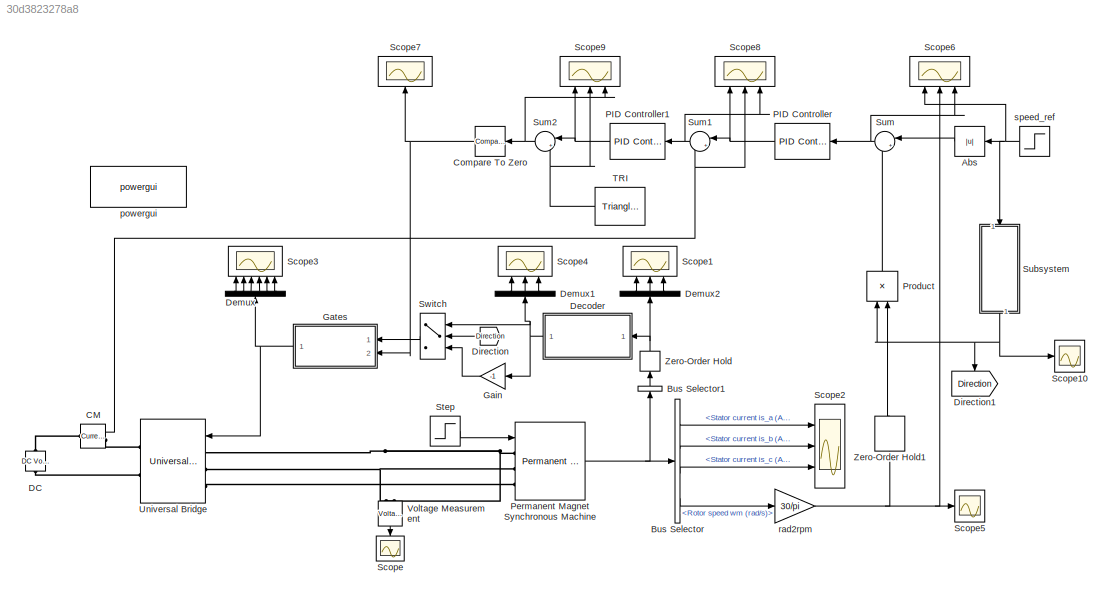
MODEL slx_30d3823278a8
KIND model
BLOCK [Abs] Abs
  SaturateOnIntegerOverflow = off
BLOCK [BusSelector] Bus Selector
  OutputSignals = Stator current is_a (A),Stator current is_b (A),Stator current is_c (A),Rotor speed wm (rad/s)
  Ports = [1, 4]
BLOCK [BusSelector] Bus Selector1
  OutputAsBus = on
  OutputSignals = Hall effect signal h_a,Hall effect signal h_b,Hall effect signal h_c
  Ports = [1, 1]
BLOCK [Reference] CM  REF=powerlib/Measurements/Current Measurement
  OutputType = Complex
  PSBequivalent = 0
  PhasorSimulation = off
  Ports = [0, 1, 0, 0, 0, 1, 1]
  SourceBlock = powerlib/Measurements/Current Measurement
  SourceType = Current Measurement
BLOCK [Reference] Compare To Zero  REF=simulink/Logic and Bit
Operations/Compare
To Zero
  OutDataTypeStr = boolean
  Ports = [1, 1]
  SourceBlock = simulink/Logic and Bit\nOperations/Compare\nTo Zero
  SourceType = Compare To Zero
  ZeroCross = on
  relop = >=
BLOCK [Reference] DC  REF=powerlib/Electrical
Sources/DC Voltage Source
  Amplitude = 48
  Measurements = None
  Ports = [0, 0, 0, 0, 0, 1, 1]
  SourceBlock = powerlib/Electrical\nSources/DC Voltage Source
  SourceType = DC Voltage Source
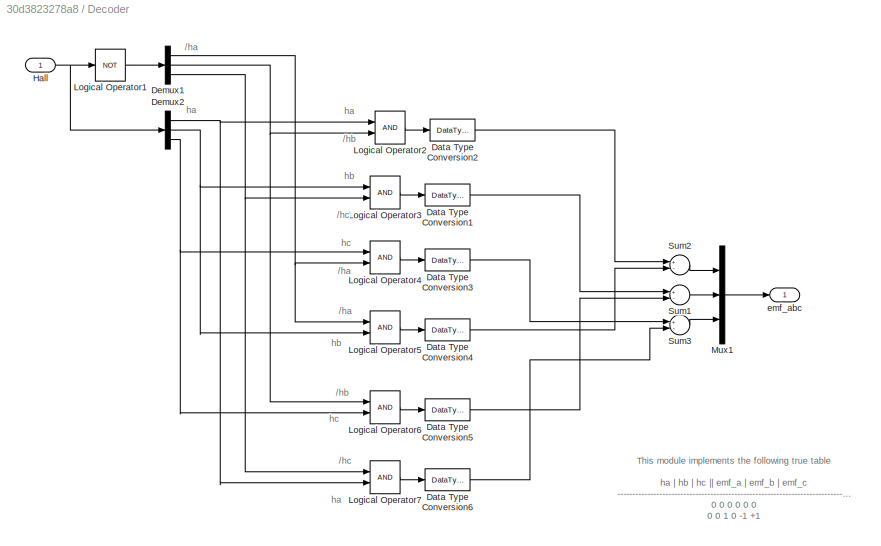
BLOCK [SubSystem] Decoder
  FunctionWithSeparateData = off
  MaskHideContents = off
  MinAlgLoopOccurrences = off
  Opaque = off
  Ports = [1, 1]
  PropExecContextOutsideSubsystem = off
  RTWSystemCode = Auto
  RequestExecContextInheritance = off
BLOCK [DataTypeConversion] Decoder/Data Type Conversion1
  RndMeth = Floor
  SaturateOnIntegerOverflow = off
BLOCK [DataTypeConversion] Decoder/Data Type Conversion2
  RndMeth = Floor
  SaturateOnIntegerOverflow = off
BLOCK [DataTypeConversion] Decoder/Data Type Conversion3
  RndMeth = Floor
  SaturateOnIntegerOverflow = off
BLOCK [DataTypeConversion] Decoder/Data Type Conversion4
  RndMeth = Floor
  SaturateOnIntegerOverflow = off
BLOCK [DataTypeConversion] Decoder/Data Type Conversion5
  RndMeth = Floor
  SaturateOnIntegerOverflow = off
BLOCK [DataTypeConversion] Decoder/Data Type Conversion6
  RndMeth = Floor
  SaturateOnIntegerOverflow = off
BLOCK [Demux] Decoder/Demux1
  DisplayOption = bar
  Outputs = 3
  Ports = [1, 3]
BLOCK [Demux] Decoder/Demux2
  DisplayOption = bar
  Outputs = 3
  Ports = [1, 3]
BLOCK [Inport] Decoder/Hall 
  IconDisplay = Port number
BLOCK [Logic] Decoder/Logical Operator1
  AllPortsSameDT = off
  Operator = NOT
  OutDataTypeStr = boolean
  Ports = [1, 1]
BLOCK [Logic] Decoder/Logical Operator2
  AllPortsSameDT = off
  OutDataTypeStr = boolean
  Ports = [2, 1]
BLOCK [Logic] Decoder/Logical Operator3
  AllPortsSameDT = off
  OutDataTypeStr = boolean
  Ports = [2, 1]
BLOCK [Logic] Decoder/Logical Operator4
  AllPortsSameDT = off
  OutDataTypeStr = boolean
  Ports = [2, 1]
BLOCK [Logic] Decoder/Logical Operator5
  AllPortsSameDT = off
  OutDataTypeStr = boolean
  Ports = [2, 1]
BLOCK [Logic] Decoder/Logical Operator6
  AllPortsSameDT = off
  OutDataTypeStr = boolean
  Ports = [2, 1]
BLOCK [Logic] Decoder/Logical Operator7
  AllPortsSameDT = off
  OutDataTypeStr = boolean
  Ports = [2, 1]
BLOCK [Mux] Decoder/Mux1
  DisplayOption = bar
  Inputs = 3
  Ports = [3, 1]
BLOCK [Sum] Decoder/Sum1
  InputSameDT = off
  Inputs = +-
  OutDataTypeStr = double
  Ports = [2, 1]
  SaturateOnIntegerOverflow = off
BLOCK [Sum] Decoder/Sum2
  InputSameDT = off
  Inputs = +-
  OutDataTypeStr = double
  Ports = [2, 1]
  SaturateOnIntegerOverflow = off
BLOCK [Sum] Decoder/Sum3
  InputSameDT = off
  Inputs = +-
  OutDataTypeStr = double
  Ports = [2, 1]
  SaturateOnIntegerOverflow = off
BLOCK [Outport] Decoder/emf_abc
  IconDisplay = Port number
BLOCK [Demux] Demux
  DisplayOption = bar
  Outputs = 6
  Ports = [1, 6]
BLOCK [Demux] Demux1
  DisplayOption = bar
  Outputs = 3
  Ports = [1, 3]
BLOCK [Demux] Demux2
  DisplayOption = bar
  Outputs = 3
  Ports = [1, 3]
BLOCK [From] Direction
  GotoTag = Direction
  TagVisibility = global
BLOCK [Goto] Direction1
  GotoTag = Direction
  TagVisibility = global
BLOCK [Gain] Gain
  Gain = -1
  OutDataTypeStr = Inherit: Inherit via internal rule
  ParamDataTypeStr = Inherit: Inherit via internal rule
  SaturateOnIntegerOverflow = off
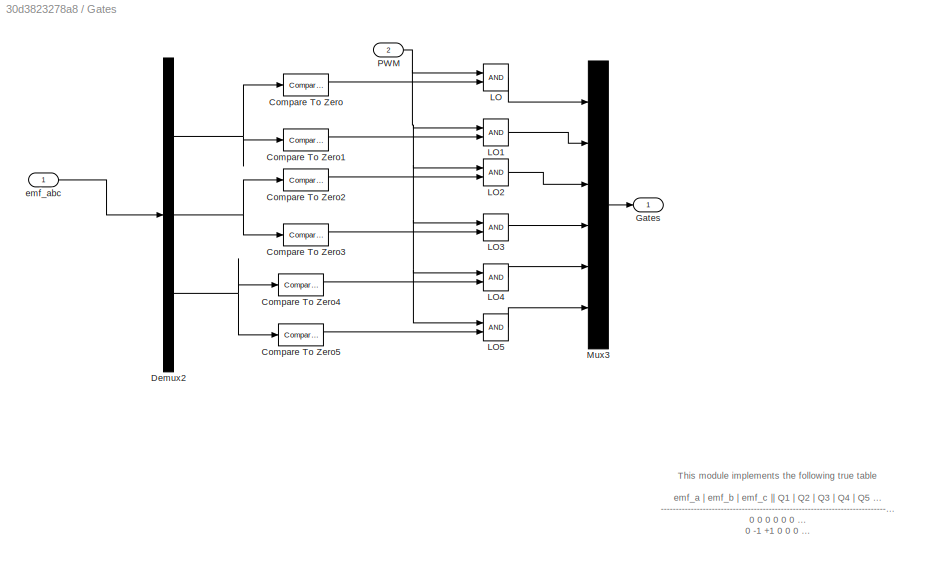
BLOCK [SubSystem] Gates
  FunctionWithSeparateData = off
  MaskHideContents = off
  MinAlgLoopOccurrences = off
  Opaque = off
  Ports = [2, 1]
  PropExecContextOutsideSubsystem = off
  RTWSystemCode = Auto
  RequestExecContextInheritance = off
BLOCK [Reference] Gates/Compare To Zero  REF=simulink/Logic and Bit
Operations/Compare
To Zero
  OutDataTypeStr = boolean
  Ports = [1, 1]
  SourceBlock = simulink/Logic and Bit\nOperations/Compare\nTo Zero
  SourceType = Compare To Zero
  ZeroCross = off
  relop = >
BLOCK [Reference] Gates/Compare To Zero1  REF=simulink/Logic and Bit
Operations/Compare
To Zero
  OutDataTypeStr = boolean
  Ports = [1, 1]
  SourceBlock = simulink/Logic and Bit\nOperations/Compare\nTo Zero
  SourceType = Compare To Zero
  ZeroCross = off
  relop = <
BLOCK [Reference] Gates/Compare To Zero2  REF=simulink/Logic and Bit
Operations/Compare
To Zero
  OutDataTypeStr = boolean
  Ports = [1, 1]
  SourceBlock = simulink/Logic and Bit\nOperations/Compare\nTo Zero
  SourceType = Compare To Zero
  ZeroCross = off
  relop = >
BLOCK [Reference] Gates/Compare To Zero3  REF=simulink/Logic and Bit
Operations/Compare
To Zero
  OutDataTypeStr = boolean
  Ports = [1, 1]
  SourceBlock = simulink/Logic and Bit\nOperations/Compare\nTo Zero
  SourceType = Compare To Zero
  ZeroCross = off
  relop = <
BLOCK [Reference] Gates/Compare To Zero4  REF=simulink/Logic and Bit
Operations/Compare
To Zero
  OutDataTypeStr = boolean
  Ports = [1, 1]
  SourceBlock = simulink/Logic and Bit\nOperations/Compare\nTo Zero
  SourceType = Compare To Zero
  ZeroCross = off
  relop = >
BLOCK [Reference] Gates/Compare To Zero5  REF=simulink/Logic and Bit
Operations/Compare
To Zero
  OutDataTypeStr = boolean
  Ports = [1, 1]
  SourceBlock = simulink/Logic and Bit\nOperations/Compare\nTo Zero
  SourceType = Compare To Zero
  ZeroCross = off
  relop = <
BLOCK [Demux] Gates/Demux2
  DisplayOption = bar
  Outputs = 3
  Ports = [1, 3]
BLOCK [Outport] Gates/Gates
  IconDisplay = Port number
BLOCK [Logic] Gates/LO
  AllPortsSameDT = off
  OutDataTypeStr = boolean
  Ports = [2, 1]
BLOCK [Logic] Gates/LO1
  AllPortsSameDT = off
  OutDataTypeStr = boolean
  Ports = [2, 1]
BLOCK [Logic] Gates/LO2
  AllPortsSameDT = off
  OutDataTypeStr = boolean
  Ports = [2, 1]
BLOCK [Logic] Gates/LO3
  AllPortsSameDT = off
  OutDataTypeStr = boolean
  Ports = [2, 1]
BLOCK [Logic] Gates/LO4
  AllPortsSameDT = off
  OutDataTypeStr = boolean
  Ports = [2, 1]
BLOCK [Logic] Gates/LO5
  AllPortsSameDT = off
  OutDataTypeStr = boolean
  Ports = [2, 1]
BLOCK [Mux] Gates/Mux3
  DisplayOption = bar
  Inputs = 6
  Ports = [6, 1]
BLOCK [Inport] Gates/PWM
  IconDisplay = Port number
  Port = 2
BLOCK [Inport] Gates/emf_abc 
  IconDisplay = Port number
BLOCK [Reference] PID Controller  REF=simulink/Continuous/PID Controller
  AntiWindupMode = none
  Controller = PID
  D = 0
  DOutDataTypeStr = Inherit: Inherit via internal rule
  DOutMax = []
  DOutMin = []
  DParamDataTypeStr = Inherit: Inherit via internal rule
  DParamMax = []
  DParamMin = []
  ExternalReset = none
  FilterContinuousStateAttributes = ''
  FilterMethod = Forward Euler
  FilterOutDataTypeStr = Inherit: Inherit via internal rule
  FilterOutMax = []
  FilterOutMin = []
  FilterRTWStateStorageClass = Auto
  FilterStateMustResolveToSignalObject = off
  Form = Parallel
  I = 0.1
  IOutDataTypeStr = Inherit: Inherit via internal rule
  IOutMax = []
  IOutMin = []
  IParamDataTypeStr = Inherit: Inherit via internal rule
  IParamMax = []
  IParamMin = []
  IgnoreLimit = off
  InitialConditionForFilter = 0
  InitialConditionForIntegrator = 0
  InitialConditionSource = internal
  IntegratorContinuousStateAttributes = ''
  IntegratorMethod = Forward Euler
  IntegratorOutDataTypeStr = Inherit: Inherit via internal rule
  IntegratorOutMax = []
  IntegratorOutMin = []
  IntegratorRTWStateStorageClass = Auto
  IntegratorStateMustResolveToSignalObject = off
  Kb = 1
  KbOutDataTypeStr = Inherit: Inherit via internal rule
  KbOutMax = []
  KbOutMin = []
  KbParamDataTypeStr = Inherit: Inherit via internal rule
  KbParamMax = []
  KbParamMin = []
  Kt = 1
  KtOutDataTypeStr = Inherit: Inherit via internal rule
  KtOutMax = []
  KtOutMin = []
  KtParamDataTypeStr = Inherit: Inherit via internal rule
  KtParamMax = []
  KtParamMin = []
  LimitOutput = on
  LinearizeAsGain = on
  LockScale = off
  LowerSaturationLimit = -100
  N = 100
  NOutDataTypeStr = Inherit: Inherit via internal rule
  NOutMax = []
  NOutMin = []
  NParamDataTypeStr = Inherit: Inherit via internal rule
  NParamMax = []
  NParamMin = []
  P = 0.1
  POutDataTypeStr = Inherit: Inherit via internal rule
  POutMax = []
  POutMin = []
  PParamDataTypeStr = Inherit: Inherit via internal rule
  PParamMax = []
  PParamMin = []
  Ports = [1, 1]
  RndMeth = Floor
  SampleTime = 1
  SaturateOnIntegerOverflow = off
  SaturationOutDataTypeStr = Inherit: Same as input
  SaturationOutMax = []
  SaturationOutMin = []
  SourceBlock = simulink/Continuous/PID Controller
  SourceType = PID 1dof
  SumAccumDataTypeStr = Inherit: Inherit via internal rule
  SumDAccumDataTypeStr = Inherit: Inherit via internal rule
  SumDOutDataTypeStr = Inherit: Inherit via internal rule
  SumDOutMax = []
  SumDOutMin = []
  SumI1AccumDataTypeStr = Inherit: Inherit via internal rule
  SumI1OutDataTypeStr = Inherit: Inherit via internal rule
  SumI1OutMax = []
  SumI1OutMin = []
  SumI2AccumDataTypeStr = Inherit: Inherit via internal rule
  SumI2OutDataTypeStr = Inherit: Inherit via internal rule
  SumI2OutMax = []
  SumI2OutMin = []
  SumI3AccumDataTypeStr = Inherit: Inherit via internal rule
  SumI3OutDataTypeStr = Inherit: Inherit via internal rule
  SumI3OutMax = []
  SumI3OutMin = []
  SumOutDataTypeStr = Inherit: Inherit via internal rule
  SumOutMax = []
  SumOutMin = []
  TimeDomain = Continuous-time
  TrackingMode = off
  UpperSaturationLimit = 100
  ZeroCross = on
BLOCK [Reference] PID Controller1  REF=simulink/Continuous/PID Controller
  AntiWindupMode = none
  Controller = PID
  D = 0
  DOutDataTypeStr = Inherit: Inherit via internal rule
  DOutMax = []
  DOutMin = []
  DParamDataTypeStr = Inherit: Inherit via internal rule
  DParamMax = []
  DParamMin = []
  ExternalReset = none
  FilterContinuousStateAttributes = ''
  FilterMethod = Forward Euler
  FilterOutDataTypeStr = Inherit: Inherit via internal rule
  FilterOutMax = []
  FilterOutMin = []
  FilterRTWStateStorageClass = Auto
  FilterStateMustResolveToSignalObject = off
  Form = Parallel
  I = 0.1
  IOutDataTypeStr = Inherit: Inherit via internal rule
  IOutMax = []
  IOutMin = []
  IParamDataTypeStr = Inherit: Inherit via internal rule
  IParamMax = []
  IParamMin = []
  IgnoreLimit = off
  InitialConditionForFilter = 0
  InitialConditionForIntegrator = 0
  InitialConditionSource = internal
  IntegratorContinuousStateAttributes = ''
  IntegratorMethod = Forward Euler
  IntegratorOutDataTypeStr = Inherit: Inherit via internal rule
  IntegratorOutMax = []
  IntegratorOutMin = []
  IntegratorRTWStateStorageClass = Auto
  IntegratorStateMustResolveToSignalObject = off
  Kb = 1
  KbOutDataTypeStr = Inherit: Inherit via internal rule
  KbOutMax = []
  KbOutMin = []
  KbParamDataTypeStr = Inherit: Inherit via internal rule
  KbParamMax = []
  KbParamMin = []
  Kt = 1
  KtOutDataTypeStr = Inherit: Inherit via internal rule
  KtOutMax = []
  KtOutMin = []
  KtParamDataTypeStr = Inherit: Inherit via internal rule
  KtParamMax = []
  KtParamMin = []
  LimitOutput = on
  LinearizeAsGain = on
  LockScale = off
  LowerSaturationLimit = -0.99
  N = 100
  NOutDataTypeStr = Inherit: Inherit via internal rule
  NOutMax = []
  NOutMin = []
  NParamDataTypeStr = Inherit: Inherit via internal rule
  NParamMax = []
  NParamMin = []
  P = 0.1
  POutDataTypeStr = Inherit: Inherit via internal rule
  POutMax = []
  POutMin = []
  PParamDataTypeStr = Inherit: Inherit via internal rule
  PParamMax = []
  PParamMin = []
  Ports = [1, 1]
  RndMeth = Floor
  SampleTime = 1
  SaturateOnIntegerOverflow = off
  SaturationOutDataTypeStr = Inherit: Same as input
  SaturationOutMax = []
  SaturationOutMin = []
  SourceBlock = simulink/Continuous/PID Controller
  SourceType = PID 1dof
  SumAccumDataTypeStr = Inherit: Inherit via internal rule
  SumDAccumDataTypeStr = Inherit: Inherit via internal rule
  SumDOutDataTypeStr = Inherit: Inherit via internal rule
  SumDOutMax = []
  SumDOutMin = []
  SumI1AccumDataTypeStr = Inherit: Inherit via internal rule
  SumI1OutDataTypeStr = Inherit: Inherit via internal rule
  SumI1OutMax = []
  SumI1OutMin = []
  SumI2AccumDataTypeStr = Inherit: Inherit via internal rule
  SumI2OutDataTypeStr = Inherit: Inherit via internal rule
  SumI2OutMax = []
  SumI2OutMin = []
  SumI3AccumDataTypeStr = Inherit: Inherit via internal rule
  SumI3OutDataTypeStr = Inherit: Inherit via internal rule
  SumI3OutMax = []
  SumI3OutMin = []
  SumOutDataTypeStr = Inherit: Inherit via internal rule
  SumOutMax = []
  SumOutMin = []
  TimeDomain = Continuous-time
  TrackingMode = off
  UpperSaturationLimit = 0.99
  ZeroCross = on
BLOCK [Reference] Permanent Magnet Synchronous Machine  REF=powerlib/Machines/Permanent Magnet
Synchronous Machine
  Flat = 120
  Flux = 0.0125
  FluxDistribution = Trapezoidal
  Inductance = 1e-4
  InitialConditions = [0,0, 0,0]
  InitialConditions5ph = [0 0 0 0 0 0]
  La = 0.000835
  MachineConstant = Torque Constant (N.m / A_peak)
  Mechanical = [ 1e-3, 1e-3 4]
  MechanicalLoad = Torque Tm
  NbPhases = 3
  PolePairs = 4
  Ports = [1, 1, 0, 0, 0, 3]
  PresetModel = No
  RefAngle = Aligned with phase A axis (original Park)
  Resistance = 0.01
  RotorType = Round
  ShowDetailedParameters = on
  SourceBlock = powerlib/Machines/Permanent Magnet\nSynchronous Machine
  SourceType = Permanent Magnet Synchronous Machine
  TorqueCst = 0.1
  TsBlock = -1
  TsPowergui = 0
  VoltageCst = 10.472
  dqInductances = [8.5e-3,8.5e-3]
BLOCK [Product] Product
  InputSameDT = off
  OutDataTypeStr = Inherit: Inherit via internal rule
  Ports = [2, 1]
  RndMeth = Floor
  SaturateOnIntegerOverflow = off
BLOCK [Scope] Scope
  DataFormat = StructureWithTime
  Floating = off
  LimitDataPoints = off
  NumInputPorts = 1
  Ports = [1]
  SampleTime = 0
  SaveName = ScopeData2
  ShowLegends = off
  YMax = 500
  YMin = -500
  ZoomMode = xonly
BLOCK [Scope] Scope1
  DataFormat = StructureWithTime
  Floating = off
  LimitDataPoints = off
  NumInputPorts = 3
  Ports = [3]
  SampleTime = 0
  SaveName = ScopeData3
  ShowLegends = off
  YMax = 1.5~1.5~1.5
  YMin = -0.5~-0.5~-0.5
BLOCK [Scope] Scope10
  DataFormat = StructureWithTime
  Floating = off
  LimitDataPoints = off
  NumInputPorts = 1
  Ports = [1]
  SampleTime = 0
  SaveName = ScopeData10
  ShowLegends = off
  YMax = 1.05
  YMin = 0.95
BLOCK [Scope] Scope2
  DataFormat = StructureWithTime
  Floating = off
  LimitDataPoints = off
  NumInputPorts = 3
  Ports = [3]
  SampleTime = 0
  ShowLegends = off
  YMax = 4~1~1
  YMin = -4~-1~-1
  ZoomMode = xonly
BLOCK [Scope] Scope3
  DataFormat = StructureWithTime
  Floating = off
  LimitDataPoints = off
  NumInputPorts = 6
  Ports = [6]
  SampleTime = 0
  SaveName = ScopeData1
  ShowLegends = off
  YMax = 1.5~1.5~1.5~1.5~1.5~1.5
  YMin = -0.5~-0.5~-0.5~-0.5~-0.5~-0.5
  ZoomMode = xonly
BLOCK [Scope] Scope4
  DataFormat = StructureWithTime
  Floating = off
  LimitDataPoints = off
  NumInputPorts = 3
  Ports = [3]
  SampleTime = 0
  SaveName = ScopeData4
  ShowLegends = off
  YMax = 1.5~1.5~1.5
  YMin = -1.5~-1.5~-1.5
BLOCK [Scope] Scope5
  DataFormat = StructureWithTime
  Floating = off
  LimitDataPoints = off
  NumInputPorts = 1
  Ports = [1]
  SampleTime = 0
  SaveName = ScopeData5
  ShowLegends = off
  YMax = 5000
  YMin = -5000
BLOCK [Scope] Scope6
  DataFormat = StructureWithTime
  Floating = off
  LimitDataPoints = off
  NumInputPorts = 3
  Ports = [3]
  SampleTime = 0
  SaveName = ScopeData6
  ShowLegends = off
  YMax = 5000~5000~300
  YMin = -5000~-5000~-300
BLOCK [Scope] Scope7
  DataFormat = StructureWithTime
  Floating = off
  LimitDataPoints = off
  NumInputPorts = 1
  Ports = [1]
  SampleTime = 0
  SaveName = ScopeData7
  ShowLegends = off
  YMax = 1.5
  YMin = -0.5
  ZoomMode = xonly
BLOCK [Scope] Scope8
  DataFormat = StructureWithTime
  Floating = off
  LimitDataPoints = off
  NumInputPorts = 3
  Ports = [3]
  SampleTime = 0
  SaveName = ScopeData8
  ShowLegends = off
  YMax = 100~100~100
  YMin = -100~-100~-100
BLOCK [Scope] Scope9
  DataFormat = StructureWithTime
  Floating = off
  LimitDataPoints = off
  NumInputPorts = 3
  Ports = [3]
  SampleTime = 0
  SaveName = ScopeData9
  ShowLegends = off
  YMax = 2.5~1.5~2.5
  YMin = -2.5~-1.5~-2.5
BLOCK [Step] Step
  After = 0
  SampleTime = 0
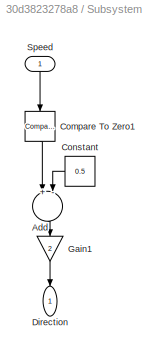
BLOCK [SubSystem] Subsystem
  FunctionWithSeparateData = off
  MaskHideContents = off
  MinAlgLoopOccurrences = off
  Opaque = off
  Ports = [1, 1]
  PropExecContextOutsideSubsystem = off
  RTWSystemCode = Auto
  RequestExecContextInheritance = off
BLOCK [Sum] Subsystem/Add
  InputSameDT = off
  Inputs = +-
  OutDataTypeStr = Inherit: Inherit via internal rule
  Ports = [2, 1]
  SaturateOnIntegerOverflow = off
BLOCK [Reference] Subsystem/Compare To Zero1  REF=simulink/Logic and Bit
Operations/Compare
To Zero
  OutDataTypeStr = boolean
  Ports = [1, 1]
  SourceBlock = simulink/Logic and Bit\nOperations/Compare\nTo Zero
  SourceType = Compare To Zero
  ZeroCross = on
  relop = >=
BLOCK [Constant] Subsystem/Constant
  Value = 0.5
BLOCK [Outport] Subsystem/Direction
  IconDisplay = Port number
BLOCK [Gain] Subsystem/Gain1
  Gain = 2
  OutDataTypeStr = Inherit: Inherit via internal rule
  ParamDataTypeStr = Inherit: Inherit via internal rule
  SaturateOnIntegerOverflow = off
BLOCK [Inport] Subsystem/Speed
  IconDisplay = Port number
BLOCK [Sum] Sum
  IconShape = round
  InputSameDT = off
  Inputs = |+-
  OutDataTypeStr = Inherit: Inherit via internal rule
  Ports = [2, 1]
  SaturateOnIntegerOverflow = off
BLOCK [Sum] Sum1
  IconShape = round
  InputSameDT = off
  Inputs = |+-
  OutDataTypeStr = Inherit: Inherit via internal rule
  Ports = [2, 1]
  SaturateOnIntegerOverflow = off
BLOCK [Sum] Sum2
  IconShape = round
  InputSameDT = off
  Inputs = |+-
  OutDataTypeStr = Inherit: Inherit via internal rule
  Ports = [2, 1]
  SaturateOnIntegerOverflow = off
BLOCK [Switch] Switch
  Criteria = u2 > Threshold
  InputSameDT = off
  SaturateOnIntegerOverflow = off
BLOCK [Reference] TRI  REF=powerlib_meascontrol/Pulse & Signal
Generators/Triangle
Generator
  Freq = 1e4
  Phase = 90
  Ports = [0, 1]
  SourceBlock = powerlib_meascontrol/Pulse & Signal\nGenerators/Triangle\nGenerator
  SourceType = Triangle Generator
  Ts = 0
BLOCK [Reference] Universal Bridge  REF=powerlib/Power
Electronics/Universal Bridge
  Arms = 3
  Device = MOSFET / Diodes
  ForwardVoltage = 0
  ForwardVoltages = [  0  0  ]
  GTOparameters = [ 10e-6 , 20e-6 ]
  IGBTparameters = [ 1e-6 , 2e-6 ]
  Lon = 0
  Measurements = None
  Measurements_2 = None
  Ports = [1, 0, 0, 0, 0, 3, 2]
  Ron = 1e-3
  SnubberCapacitance = 1e-6
  SnubberResistance = 5000
  SourceBlock = powerlib/Power\nElectronics/Universal Bridge
  SourceType = Universal Bridge
  converterType = Rectifier
BLOCK [Reference] Voltage Measurement  REF=powerlib/Measurements/Voltage Measurement
  OutputType = Complex
  PSBequivalent = 0
  PhasorSimulation = off
  Ports = [0, 1, 0, 0, 0, 2]
  SourceBlock = powerlib/Measurements/Voltage Measurement
  SourceType = Voltage Measurement
BLOCK [ZeroOrderHold] Zero-Order Hold
  SampleTime = 1e-4
BLOCK [ZeroOrderHold] Zero-Order Hold1
  SampleTime = 1e-4
BLOCK [Reference] powergui  REF=powerlib/powergui
  DisableRonSwitches = off
  DisableSnubberDevices = off
  DisableVfSwitches = off
  DisplayEquations = off
  DisplayStyle = 1
  EnableUseOfTLC = off
  ErrMax = 1e-4
  Frange = [0:2:500]
  FreqAxis = off
  FunctionMessages = off
  HookPort = off
  Interpol = off
  Iterations = 50
  MaxFrequency = 1000
  Pbase = 100e6
  Ports = []
  Priority = 2
  ResistiveCurrentMeasurement = off
  RestoreLinks = warning
  RmsSteady = 1
  SPID = off
  SampleTime = 1e-5
  ShowGrid = off
  SolverType = Backward Euler
  SourceBlock = powerlib/powergui
  SourceType = PSB option menu block
  StartTime = 0.0
  SwTol = 0
  Ts = 0
  UnitsV = kV
  UnitsW = MW
  UserDataPersistent = on
  Xlog = on
  Ylog = off
  ZoomFFT = on
  cycles = 1
  display = off
  echomessages = off
  frequency = 60
  frequencyindice = 0
  frequencyindicesteady = 1
  fundamental = 60
  methode = off
  save = off
  variable = ZData
  x0status = blocks
BLOCK [Gain] rad2rpm
  Gain = 30/pi
  OutDataTypeStr = Inherit: Inherit via internal rule
  ParamDataTypeStr = Inherit: Inherit via internal rule
  SaturateOnIntegerOverflow = off
BLOCK [Step] speed_ref
  After = -4000
  Before = 4000
  SampleTime = 0
ANNOTATION Decoder: /ha
ANNOTATION Decoder: /hb
ANNOTATION Decoder: /hc
ANNOTATION Decoder: This module implements the following true table ha | hb | hc || emf_a | emf_b | emf_c -------------------------------------------------------------------------------- 0 0 0 0 0 0 0 0 1 0 -1 +1 0 1 0 -1 +1 0 0 1 1 -1 0 +1 1 0 0 +1 0 -1 1 0 1 +1 -1 0 1 1 0 0 +1 -1 1 1 1 0 0 0
ANNOTATION Decoder: ha
ANNOTATION Decoder: hb
ANNOTATION Decoder: hc
ANNOTATION Gates: This module implements the following true table emf_a | emf_b | emf_c || Q1 | Q2 | Q3 | Q4 | Q5 | Q6 ------------------------------------------------------------------------------------------------------------------ 0 0 0 0 0 0 0 0 0 0 -1 +1 0 0 0 1 1 0 -1 +1 0 0 1 1 0 0 0 -1 0 +1 0 1 0 0 1 0 +1 0 -1 1 0 0 0 0 1 +1 -1 0 1 0 0 1 0 0 0 +1 -1 0 0 1 0 0 1 0 0 0 0 0 0 0 0 0
LINE Abs:1 -> Sum:1
LINE Bus Selector1:1 -> Zero-Order Hold:1
LINE Bus Selector:1 -> Scope2:1
LINE Bus Selector:2 -> Scope2:2
LINE Bus Selector:3 -> Scope2:3
LINE Bus Selector:4 -> rad2rpm:1
NET CM:1 -> Scope8:2, Sum1:2
NET Compare To Zero:1 -> Gates:2, Scope7:1
LINE Decoder/Data Type Conversion1:1 -> Decoder/Sum1:1
LINE Decoder/Data Type Conversion2:1 -> Decoder/Sum2:1
LINE Decoder/Data Type Conversion3:1 -> Decoder/Sum3:1
LINE Decoder/Data Type Conversion4:1 -> Decoder/Sum2:2
LINE Decoder/Data Type Conversion5:1 -> Decoder/Sum1:2
LINE Decoder/Data Type Conversion6:1 -> Decoder/Sum3:2
NET Decoder/Demux1:1 -> Decoder/Logical Operator4:2, Decoder/Logical Operator5:1
NET Decoder/Demux1:2 -> Decoder/Logical Operator2:2, Decoder/Logical Operator6:1
NET Decoder/Demux1:3 -> Decoder/Logical Operator3:2, Decoder/Logical Operator7:1
NET Decoder/Demux2:1 -> Decoder/Logical Operator2:1, Decoder/Logical Operator7:2
NET Decoder/Demux2:2 -> Decoder/Logical Operator3:1, Decoder/Logical Operator5:2
NET Decoder/Demux2:3 -> Decoder/Logical Operator4:1, Decoder/Logical Operator6:2
NET Decoder/Hall :1 -> Decoder/Demux2:1, Decoder/Logical Operator1:1
LINE Decoder/Logical Operator1:1 -> Decoder/Demux1:1
LINE Decoder/Logical Operator2:1 -> Decoder/Data Type Conversion2:1
LINE Decoder/Logical Operator3:1 -> Decoder/Data Type Conversion1:1
LINE Decoder/Logical Operator4:1 -> Decoder/Data Type Conversion3:1
LINE Decoder/Logical Operator5:1 -> Decoder/Data Type Conversion4:1
LINE Decoder/Logical Operator6:1 -> Decoder/Data Type Conversion5:1
LINE Decoder/Logical Operator7:1 -> Decoder/Data Type Conversion6:1
LINE Decoder/Mux1:1 -> Decoder/emf_abc:1
LINE Decoder/Sum1:1 -> Decoder/Mux1:2
LINE Decoder/Sum2:1 -> Decoder/Mux1:1
LINE Decoder/Sum3:1 -> Decoder/Mux1:3
NET Decoder:1 -> Demux1:1, Gain:1, Switch:1
LINE Demux1:1 -> Scope4:1
LINE Demux1:2 -> Scope4:2
LINE Demux1:3 -> Scope4:3
LINE Demux2:1 -> Scope1:1
LINE Demux2:2 -> Scope1:2
LINE Demux2:3 -> Scope1:3
LINE Demux:1 -> Scope3:1
LINE Demux:2 -> Scope3:2
LINE Demux:3 -> Scope3:3
LINE Demux:4 -> Scope3:4
LINE Demux:5 -> Scope3:5
LINE Demux:6 -> Scope3:6
LINE Direction:1 -> Switch:2
LINE Gain:1 -> Switch:3
LINE Gates/Compare To Zero1:1 -> Gates/LO1:2
LINE Gates/Compare To Zero2:1 -> Gates/LO2:2
LINE Gates/Compare To Zero3:1 -> Gates/LO3:2
LINE Gates/Compare To Zero4:1 -> Gates/LO4:2
LINE Gates/Compare To Zero5:1 -> Gates/LO5:2
LINE Gates/Compare To Zero:1 -> Gates/LO:2
NET Gates/Demux2:1 -> Gates/Compare To Zero1:1, Gates/Compare To Zero:1
NET Gates/Demux2:2 -> Gates/Compare To Zero2:1, Gates/Compare To Zero3:1
NET Gates/Demux2:3 -> Gates/Compare To Zero4:1, Gates/Compare To Zero5:1
LINE Gates/LO1:1 -> Gates/Mux3:2
LINE Gates/LO2:1 -> Gates/Mux3:3
LINE Gates/LO3:1 -> Gates/Mux3:4
LINE Gates/LO4:1 -> Gates/Mux3:5
LINE Gates/LO5:1 -> Gates/Mux3:6
LINE Gates/LO:1 -> Gates/Mux3:1
LINE Gates/Mux3:1 -> Gates/Gates:1
NET Gates/PWM:1 -> Gates/LO1:1, Gates/LO2:1, Gates/LO3:1, Gates/LO4:1, Gates/LO5:1, Gates/LO:1
LINE Gates/emf_abc :1 -> Gates/Demux2:1
NET Gates:1 -> Demux:1, Universal Bridge:1
NET PID Controller1:1 -> Scope9:1, Sum2:1
NET PID Controller:1 -> Scope8:1, Sum1:1
NET Permanent Magnet Synchronous Machine:1 -> Bus Selector1:1, Bus Selector:1
LINE Product:1 -> Sum:2
LINE Step:1 -> Permanent Magnet Synchronous Machine:1
LINE Subsystem/Add:1 -> Subsystem/Gain1:1
LINE Subsystem/Compare To Zero1:1 -> Subsystem/Add:1
LINE Subsystem/Constant:1 -> Subsystem/Add:2
LINE Subsystem/Gain1:1 -> Subsystem/Direction:1
LINE Subsystem/Speed:1 -> Subsystem/Compare To Zero1:1
NET Subsystem:1 -> Direction1:1, Product:1, Scope10:1
NET Sum1:1 -> PID Controller1:1, Scope8:3
NET Sum2:1 -> Compare To Zero:1, Scope9:3
NET Sum:1 -> PID Controller:1, Scope6:3
LINE Switch:1 -> Gates:1
NET TRI:1 -> Scope9:2, Sum2:2
LINE Voltage Measurement:1 -> Scope:1
LINE Zero-Order Hold1:1 -> Product:2
NET Zero-Order Hold:1 -> Decoder:1, Demux2:1
NET rad2rpm:1 -> Scope5:1, Scope6:2, Zero-Order Hold1:1
NET speed_ref:1 -> Abs:1, Scope6:1, Subsystem:1
PLINE CM:LConn1 -- DC:RConn1
PLINE CM:RConn1 -- Universal Bridge:RConn1
PLINE DC:LConn1 -- Universal Bridge:RConn2
PNET net1: Permanent Magnet Synchronous Machine:LConn1 -- Universal Bridge:LConn1 -- Voltage Measurement:LConn1
PNET net2: Permanent Magnet Synchronous Machine:LConn2 -- Universal Bridge:LConn2 -- Voltage Measurement:LConn2
PLINE Permanent Magnet Synchronous Machine:LConn3 -- Universal Bridge:LConn3
note: NET lines group one-source signal fan-out (src -> all destinations, sorted); 1:1 wires keep LINE; PNET lines group multi-terminal physical nets as a canonical sorted terminal list (undirected conserving connections); 2-terminal nets keep the pairwise PLINE form
